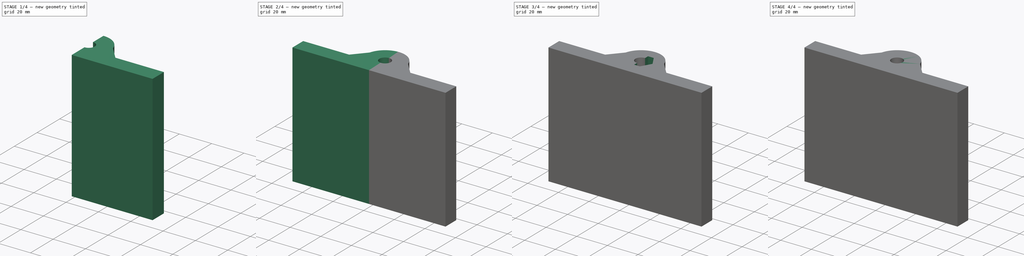
[diagram: build sequence overview — one tinted view per stage of 4, left to right]
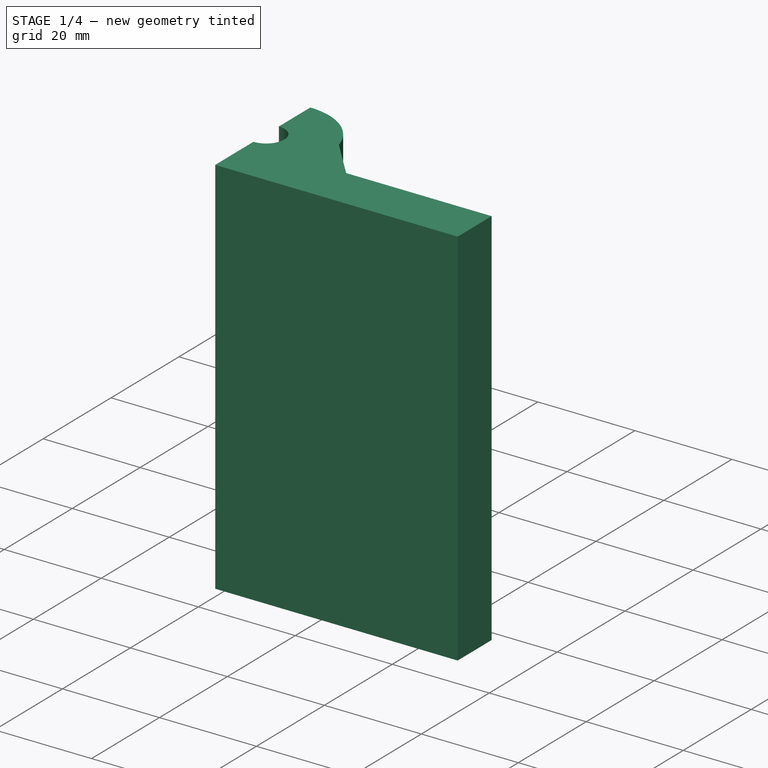
[diagram: stage 1 of 4 — iso view after this stage's code; geometry added in this stage tinted green]
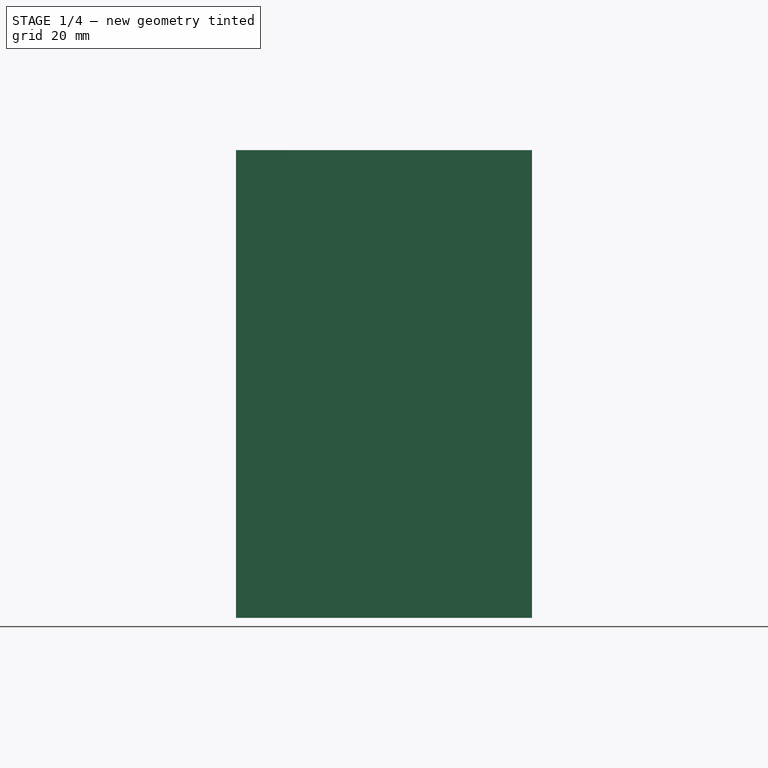
[diagram: stage 1 of 4 — front view after this stage's code; geometry added in this stage tinted green]
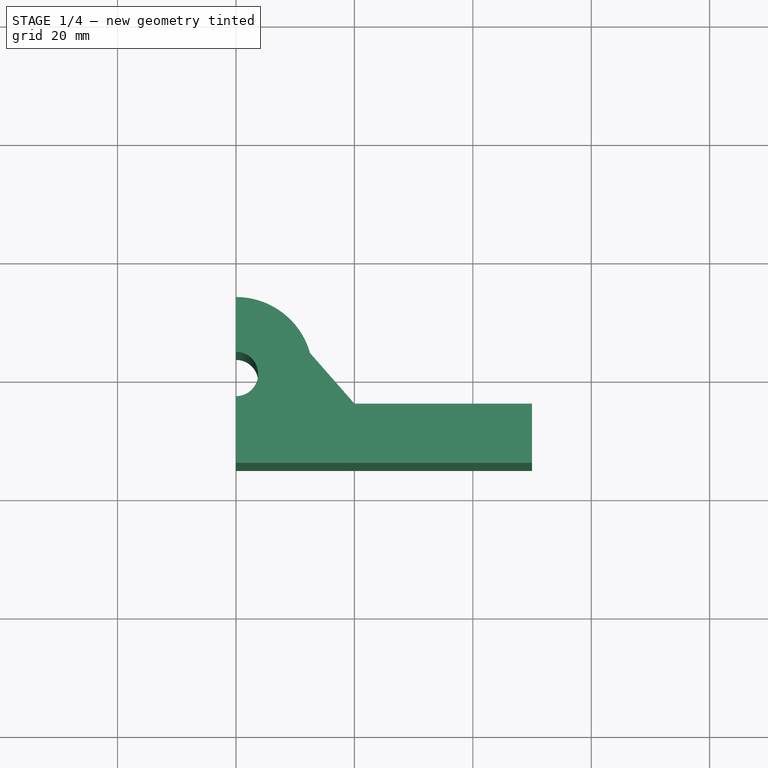
[diagram: stage 1 of 4 — top view after this stage's code; geometry added in this stage tinted green]
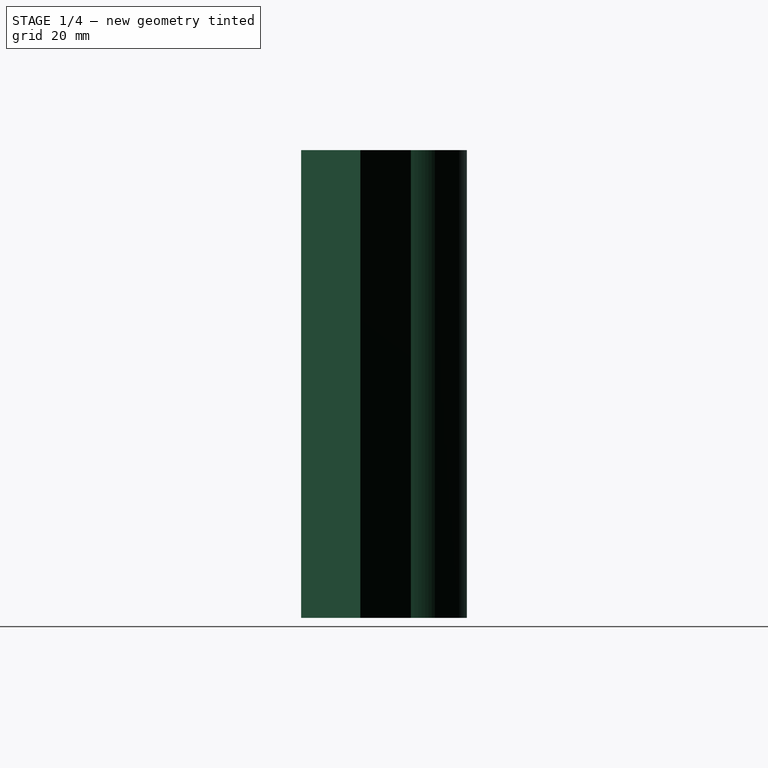
[diagram: stage 1 of 4 — right view after this stage's code; geometry added in this stage tinted green]
FCSTD DOCUMENT  (FreeCAD 0.19R24291 (Git))
Label: Zrcadlovka_1
License: All rights reserved
LicenseURL: http://en.wikipedia.org/wiki/All_rights_reserved
objects: Sketcher::SketchObject×4, Part::Mirroring×4, App::Part×2, Part::Extrusion×2, Part::MultiFuse×2, PartDesign::Pocket×2, PartDesign::ShapeBinder×1, PartDesign::Body×1, PartDesign::FeatureBase×1
note: 19 computed .brp shape members not serialized (recipe doc carries the construction recipe); baked Part::Feature solids carry a one-line shape summary decoded from their .brp

FEATURE [PartDesign::ShapeBinder] CopyFusion
  TraceSupport = false
FEATURE [PartDesign::Body] Body  label="Pulka"
  Group = -> [CopyFusion]
  Origin = -> Origin001
FEATURE [Sketcher::SketchObject] Sketch004  label="Zakladni_tvar001"
  FullyConstrained = true
  MapMode = 5
  Support = -> [XY_Plane005]
  sketch-geometry (9):
    g0: Circle CenterX=0 CenterY=0 CenterZ=0 NormalX=0 NormalY=0 NormalZ=1 AngleXU=0 Radius=3.75
    g1: LineSegment StartX=-50 StartY=-15.0095 StartZ=0 EndX=0 EndY=-15.0095 EndZ=0
    g2: LineSegment StartX=-50 StartY=-5.00947 StartZ=0 EndX=-50 EndY=-15.0095 EndZ=0
    g3: LineSegment StartX=-12.51 StartY=3.53552 StartZ=0 EndX=-20 EndY=-5.00553 EndZ=0
    g4: LineSegment StartX=-20 StartY=-5.00553 StartZ=0 EndX=-50 EndY=-5.00947 EndZ=0
    g5: ArcOfCircle CenterX=0 CenterY=0 CenterZ=0 NormalX=0 NormalY=0 NormalZ=1 AngleXU=0 Radius=13 StartAngle=1.5708 EndAngle=2.86616
    g6: ArcOfCircle CenterX=0 CenterY=0 CenterZ=0 NormalX=0 NormalY=0 NormalZ=1 AngleXU=0 Radius=3.75 StartAngle=1.5708 EndAngle=4.71239
    g7: LineSegment StartX=8e-16 StartY=13 StartZ=0 EndX=8e-16 EndY=3.75 EndZ=0
    g8: LineSegment StartX=0 StartY=-3.75 StartZ=0 EndX=0 EndY=-15.0095 EndZ=0
  constraints (26):
    c: Coincident(g0,g-1)
    c: Radius(g0) = 3.75
    c: Coincident(g4,g2)
    c: Coincident(g2,g1)
    c: Horizontal(g1)
    c: Vertical(g2)
    c: Distance(g1) = 50
    c: Distance(g2) = 10
    c: Coincident(g4,g3)
    c: Coincident(g5,g0)
    c: Coincident(g5,g3)
    c: Coincident(g6,g5)
    c: PointOnObject(g6,g0)
    c: Angle(g6) = 3.14159
    c: PointOnObject(g6,g-2)
    c: Coincident(g7,g5)
    c: Coincident(g7,g6)
    c: Vertical(g7)
    c: Coincident(g8,g1)
    c: Vertical(g8)
    c: Coincident(g8,g6)
    c: Distance(g3,g3) = 11.36
    c: Distance(g1,g3) = 22.37
    c: DistanceX(g2,g3) = 30
    c: Radius(g5) = 13
    c: DistanceX(g3) = -12.51
FEATURE [Sketcher::SketchObject] Sketch005  label="DiraMatice001"
  FullyConstrained = true
  MapMode = 5
  Support = -> [XY_Plane006]
  sketch-geometry (7):
    g0: LineSegment StartX=0 StartY=-7.5 StartZ=0 EndX=6.49519 EndY=-3.75 EndZ=0
    g1: LineSegment StartX=6.49519 StartY=-3.75 StartZ=0 EndX=6.49519 EndY=3.75 EndZ=0
    g2: LineSegment StartX=6.49519 StartY=3.75 StartZ=0 EndX=-2.11111e-11 EndY=7.5 EndZ=0
    g3: LineSegment StartX=-2.11112e-11 StartY=7.5 StartZ=0 EndX=-6.49519 EndY=3.75 EndZ=0
    g4: LineSegment StartX=-6.49519 StartY=3.75 StartZ=0 EndX=-6.49519 EndY=-3.75 EndZ=0
    g5: LineSegment StartX=-6.49519 StartY=-3.75 StartZ=0 EndX=0 EndY=-7.5 EndZ=0
    g6: Circle CenterX=0 CenterY=0 CenterZ=0 NormalX=0 NormalY=0 NormalZ=1 AngleXU=0 Radius=7.5
  constraints (16):
    c: Coincident(g0,g1)
    c: Coincident(g1,g2)
    c: Coincident(g2,g3)
    c: Coincident(g3,g4)
    c: Coincident(g4,g5)
    c: Coincident(g5,g0)
    c: Equal(g0, g1-g5) x5
    c: PointOnObject(g0,g6)
    c: PointOnObject(g1,g6)
    c: PointOnObject(g2,g6)
    c: PointOnObject(g3,g6)
    c: PointOnObject(g4,g6)
    c: PointOnObject(g5,g6)
    c: Coincident(g6,g-1)
    c: PointOnObject(g5,g-2)
    c: Radius(g6) = 7.5
FEATURE [Part::Mirroring] Part__Mirroring002  label="Zakladni_tvar (Mirror #1)001"
  Base = (-25,-1.00474,0)
  Normal = (0,0,1)
  Source = -> Sketch004
FEATURE [Part::Extrusion] Extrude001  label="Extrude_pulky001"
  Base = -> Part__Mirroring002
  Dir = (0,0,1)
  DirMode = 2
  FaceMakerClass = Part::FaceMakerBullseye
  LengthFwd = 79
  LengthRev = 0
  Solid = true
  Symmetric = false
FEATURE [Part::Mirroring] Part__Mirroring003  label="Extrude (Mirror #2)001"
  Base = (0,0,0)
  Normal = (1,0,0)
  Source = -> Extrude001
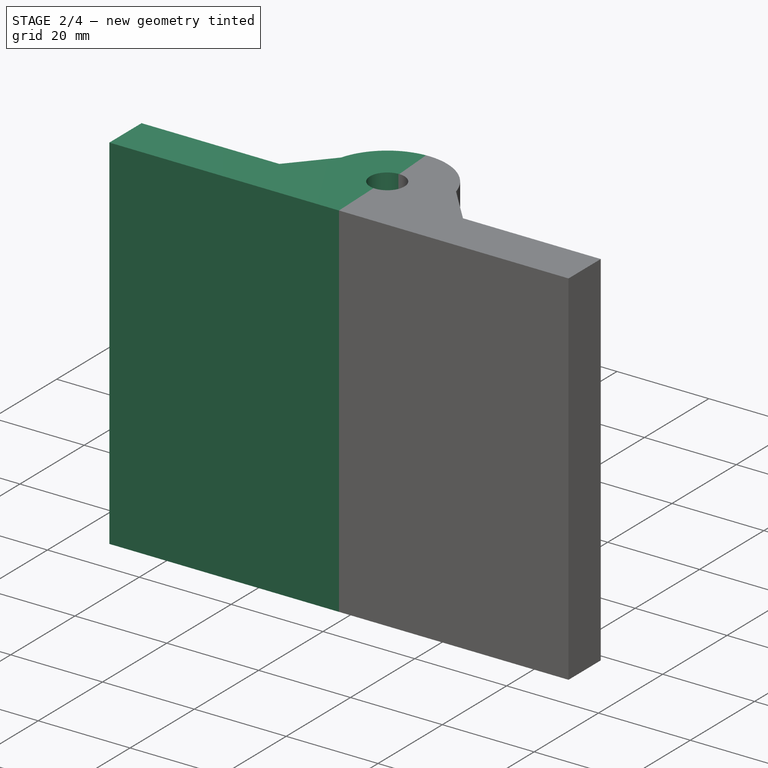
[diagram: stage 2 of 4 — iso view after this stage's code; geometry added in this stage tinted green]
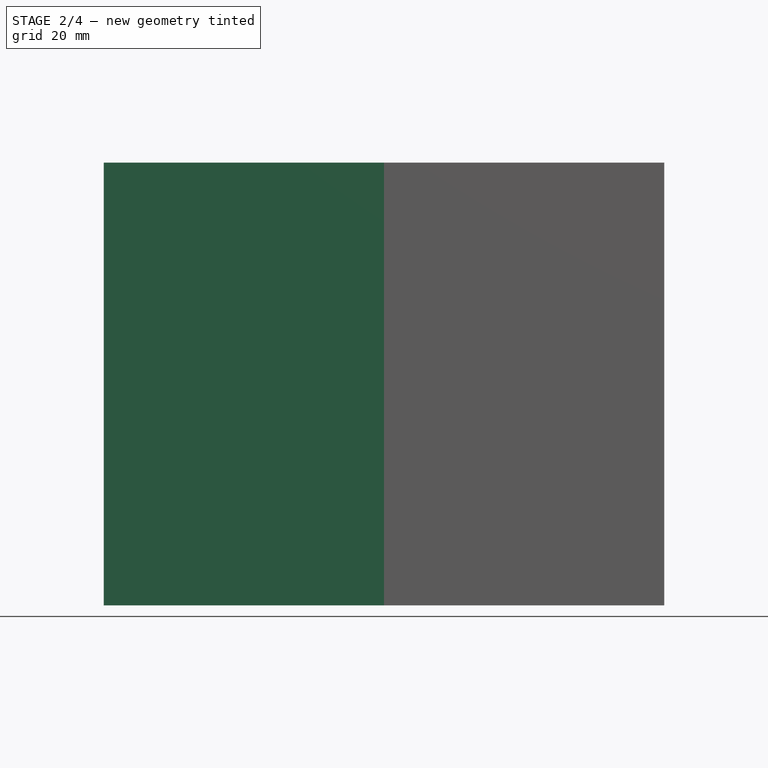
[diagram: stage 2 of 4 — front view after this stage's code; geometry added in this stage tinted green]
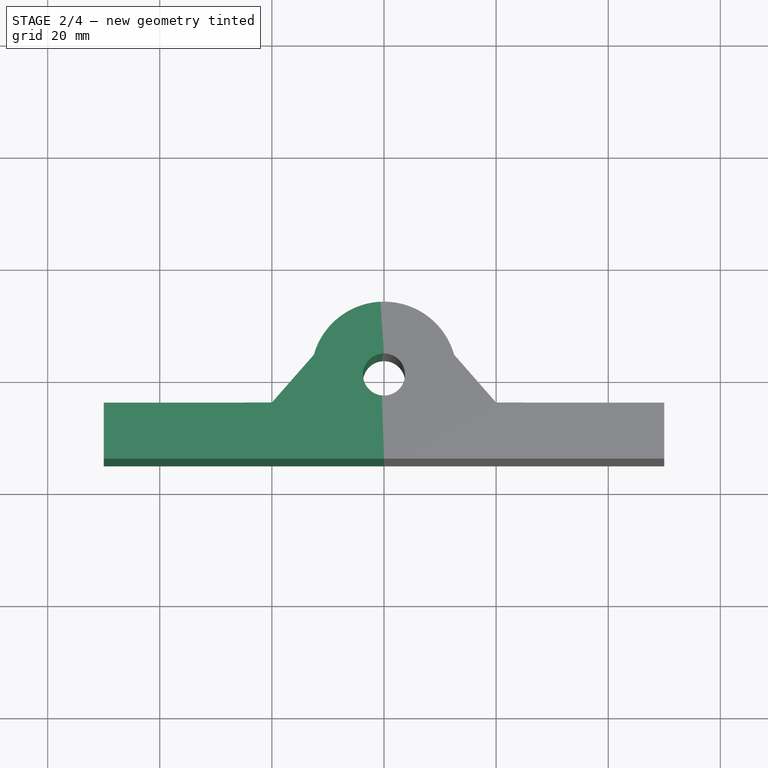
[diagram: stage 2 of 4 — top view after this stage's code; geometry added in this stage tinted green]
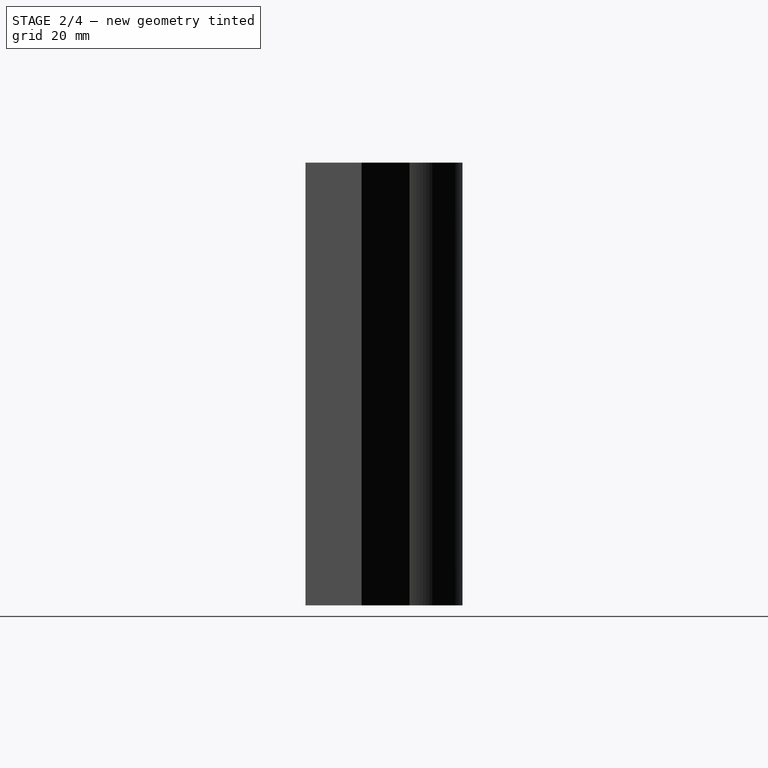
[diagram: stage 2 of 4 — right view after this stage's code; geometry added in this stage tinted green]
FEATURE [Part::MultiFuse] Fusion001
  Shapes = -> [Part__Mirroring003,Extrude001]
FEATURE [PartDesign::FeatureBase] BaseFeature001
  BaseFeature = -> Fusion001
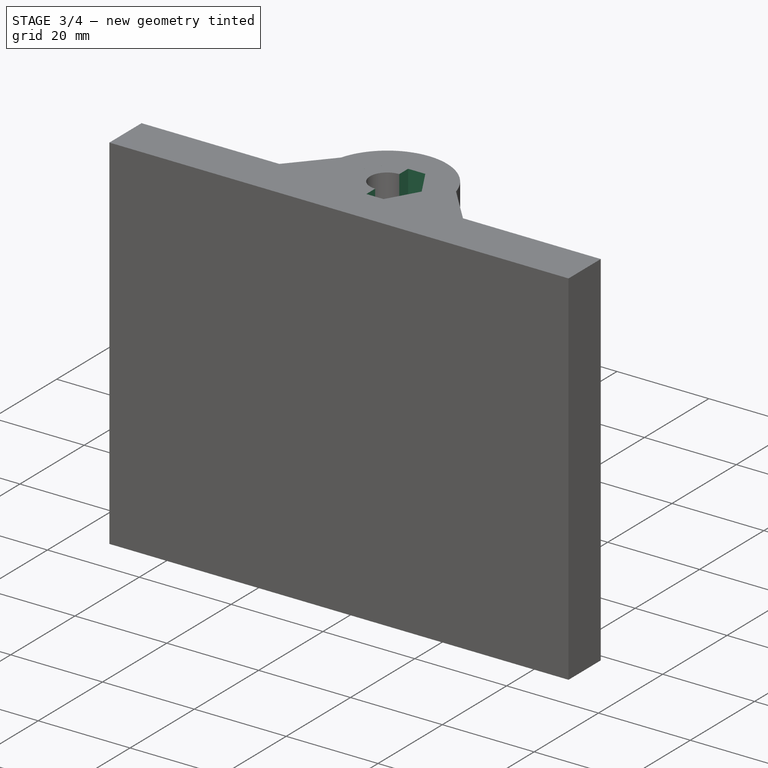
[diagram: stage 3 of 4 — iso view after this stage's code; geometry added in this stage tinted green]
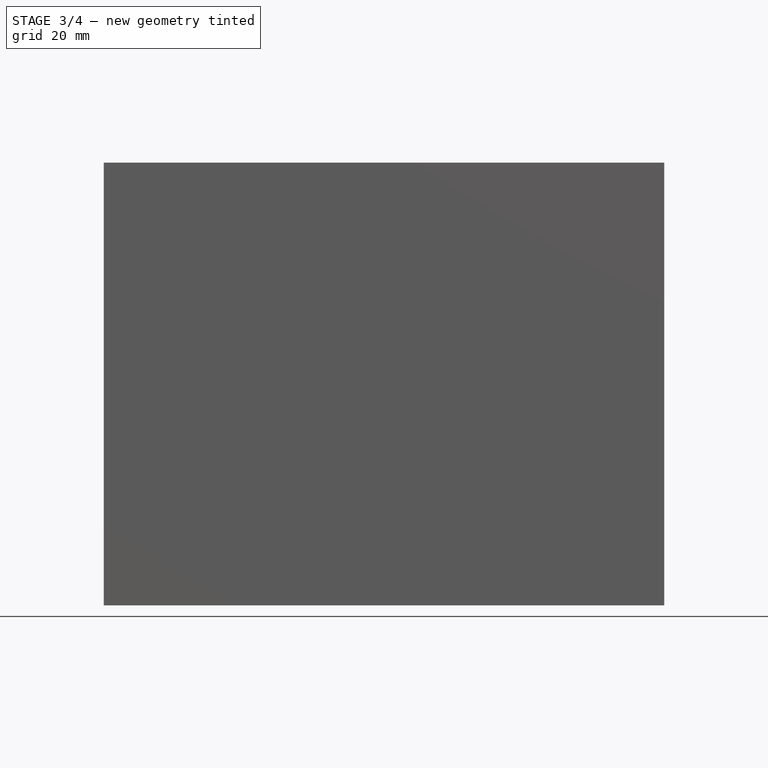
[diagram: stage 3 of 4 — front view after this stage's code; geometry added in this stage tinted green]
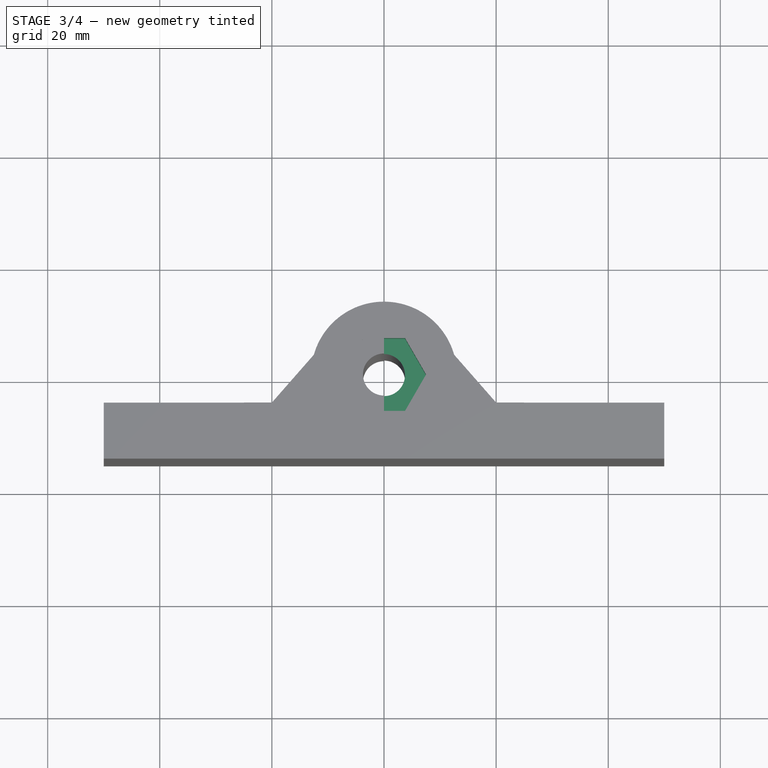
[diagram: stage 3 of 4 — top view after this stage's code; geometry added in this stage tinted green]
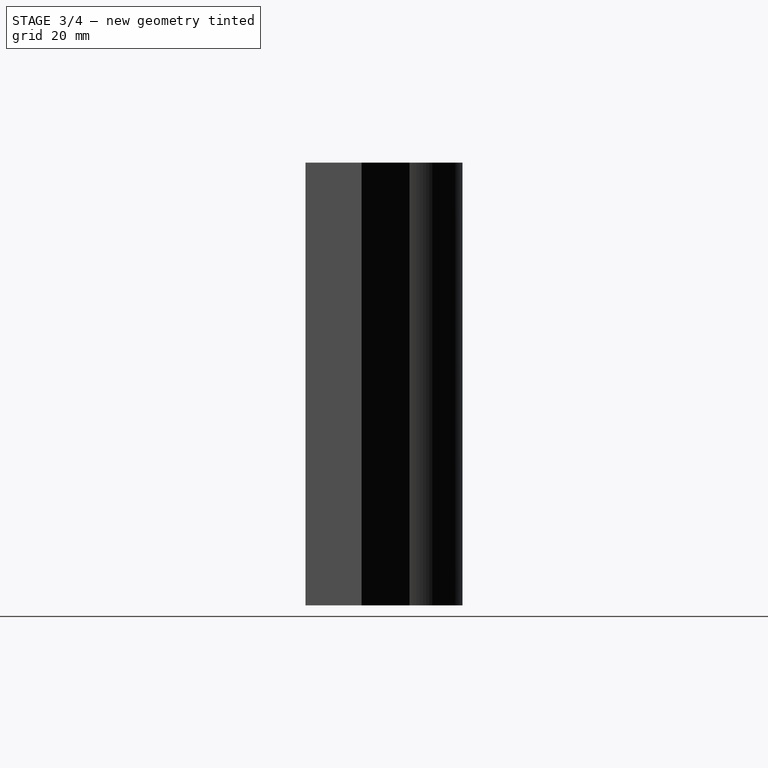
[diagram: stage 3 of 4 — right view after this stage's code; geometry added in this stage tinted green]
FEATURE [App::Part] Part
  Origin = -> Origin
FEATURE [Sketcher::SketchObject] Sketch  label="Zakladni_tvar"
  FullyConstrained = true
  MapMode = 5
  Support = -> [XY_Plane002]
  sketch-geometry (9):
    g0: Circle CenterX=0 CenterY=0 CenterZ=0 NormalX=0 NormalY=0 NormalZ=1 AngleXU=0 Radius=3.75
    g1: LineSegment StartX=-50 StartY=-15.0095 StartZ=0 EndX=0 EndY=-15.0095 EndZ=0
    g2: LineSegment StartX=-50 StartY=-5.00947 StartZ=0 EndX=-50 EndY=-15.0095 EndZ=0
    g3: LineSegment StartX=-12.51 StartY=3.53552 StartZ=0 EndX=-20 EndY=-5.00553 EndZ=0
    g4: LineSegment StartX=-20 StartY=-5.00553 StartZ=0 EndX=-50 EndY=-5.00947 EndZ=0
    g5: ArcOfCircle CenterX=0 CenterY=0 CenterZ=0 NormalX=0 NormalY=0 NormalZ=1 AngleXU=0 Radius=13 StartAngle=1.5708 EndAngle=2.86616
    g6: ArcOfCircle CenterX=0 CenterY=0 CenterZ=0 NormalX=0 NormalY=0 NormalZ=1 AngleXU=0 Radius=3.75 StartAngle=1.5708 EndAngle=4.71239
    g7: LineSegment StartX=2e-16 StartY=13 StartZ=0 EndX=2e-16 EndY=3.75 EndZ=0
    g8: LineSegment StartX=0 StartY=-3.75 StartZ=0 EndX=0 EndY=-15.0095 EndZ=0
  constraints (26):
    c: Coincident(g0,g-1)
    c: Radius(g0) = 3.75
    c: Coincident(g4,g2)
    c: Coincident(g2,g1)
    c: Horizontal(g1)
    c: Vertical(g2)
    c: Distance(g1) = 50
    c: Distance(g2) = 10
    c: Coincident(g4,g3)
    c: Coincident(g5,g0)
    c: Coincident(g5,g3)
    c: Coincident(g6,g5)
    c: PointOnObject(g6,g0)
    c: Angle(g6) = 3.14159
    c: PointOnObject(g6,g-2)
    c: Coincident(g7,g5)
    c: Coincident(g7,g6)
    c: Vertical(g7)
    c: Coincident(g8,g1)
    c: Vertical(g8)
    c: Coincident(g8,g6)
    c: Distance(g3,g3) = 11.36
    c: Distance(g1,g3) = 22.37
    c: DistanceX(g2,g3) = 30
    c: Radius(g5) = 13
    c: DistanceX(g3) = -12.51
FEATURE [App::Part] Part001  label="Pokracovani_pulky"
  Group = -> [Sketch]
  Origin = -> Origin002
FEATURE [Part::Mirroring] Part__Mirroring  label="Zakladni_tvar (Mirror #1)"
  Base = (-25,-1.00474,0)
  Normal = (0,0,1)
  Source = -> Sketch
FEATURE [Part::Extrusion] Extrude  label="Extrude_pulky"
  Base = -> Part__Mirroring
  Dir = (0,0,1)
  DirMode = 2
  FaceMakerClass = Part::FaceMakerBullseye
  LengthFwd = 79
  LengthRev = 0
  Solid = true
  Symmetric = false
FEATURE [PartDesign::Pocket] Pocket003
  BaseFeature = -> BaseFeature001
  Length = 6
  Length2 = 100
  Profile = -> Sketch005
  Reversed = true
  Type = 0
FEATURE [Sketcher::SketchObject] Sketch003
  FullyConstrained = true
  MapMode = 5
  Placement = pos=(0,0,79) rot=(0,0,1;0rad)
  Support = -> [Pocket003]
  sketch-geometry (7):
    g0: LineSegment StartX=-3.75 StartY=-6.49519 StartZ=0 EndX=3.75 EndY=-6.49519 EndZ=0
    g1: LineSegment StartX=3.75 StartY=-6.49519 StartZ=0 EndX=7.5 EndY=-2.7098e-12 EndZ=0
    g2: LineSegment StartX=7.5 StartY=-2.7098e-12 StartZ=0 EndX=3.75 EndY=6.49519 EndZ=0
    g3: LineSegment StartX=3.75 StartY=6.49519 StartZ=0 EndX=-3.75 EndY=6.49519 EndZ=0
    g4: LineSegment StartX=-3.75 StartY=6.49519 StartZ=0 EndX=-7.5 EndY=0 EndZ=0
    g5: LineSegment StartX=-7.5 StartY=0 StartZ=0 EndX=-3.75 EndY=-6.49519 EndZ=0
    g6: Circle CenterX=0 CenterY=0 CenterZ=0 NormalX=0 NormalY=0 NormalZ=1 AngleXU=0 Radius=7.5
  constraints (16):
    c: Coincident(g0,g1)
    c: Coincident(g1,g2)
    c: Coincident(g2,g3)
    c: Coincident(g3,g4)
    c: Coincident(g4,g5)
    c: Coincident(g5,g0)
    c: Equal(g0, g1-g5) x5
    c: PointOnObject(g0,g6)
    c: PointOnObject(g1,g6)
    c: PointOnObject(g2,g6)
    c: PointOnObject(g3,g6)
    c: PointOnObject(g4,g6)
    c: PointOnObject(g5,g6)
    c: Radius(g6) = 7.5
    c: Coincident(g6,g-1)
    c: PointOnObject(g4,g-1)
FEATURE [PartDesign::Pocket] Pocket002  label="refer_vzpera"
  BaseFeature = -> Pocket003
  Length = 6
  Length2 = 100
  Profile = -> Sketch003
  Type = 0
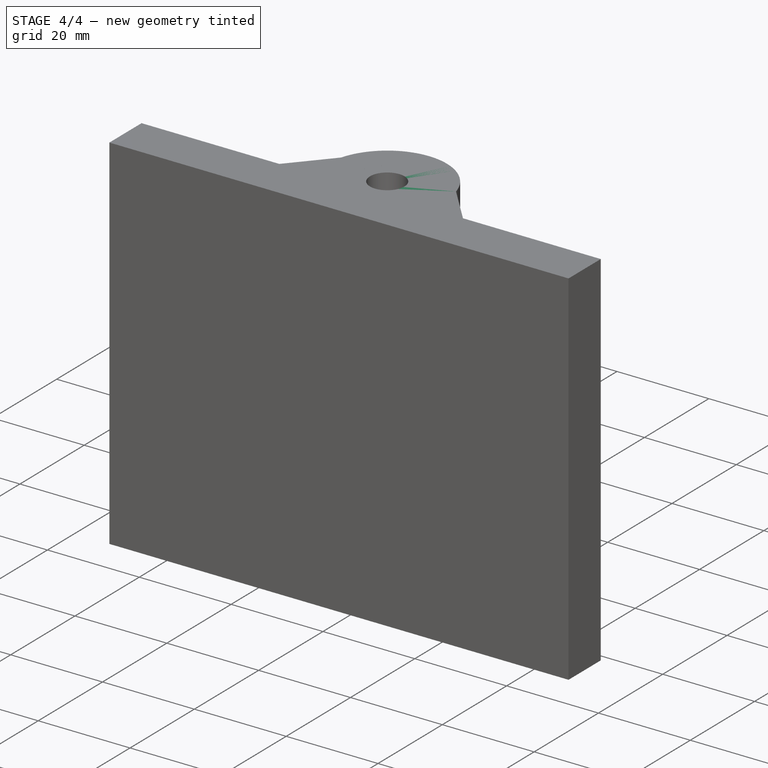
[diagram: stage 4 of 4 — iso view after this stage's code; geometry added in this stage tinted green]
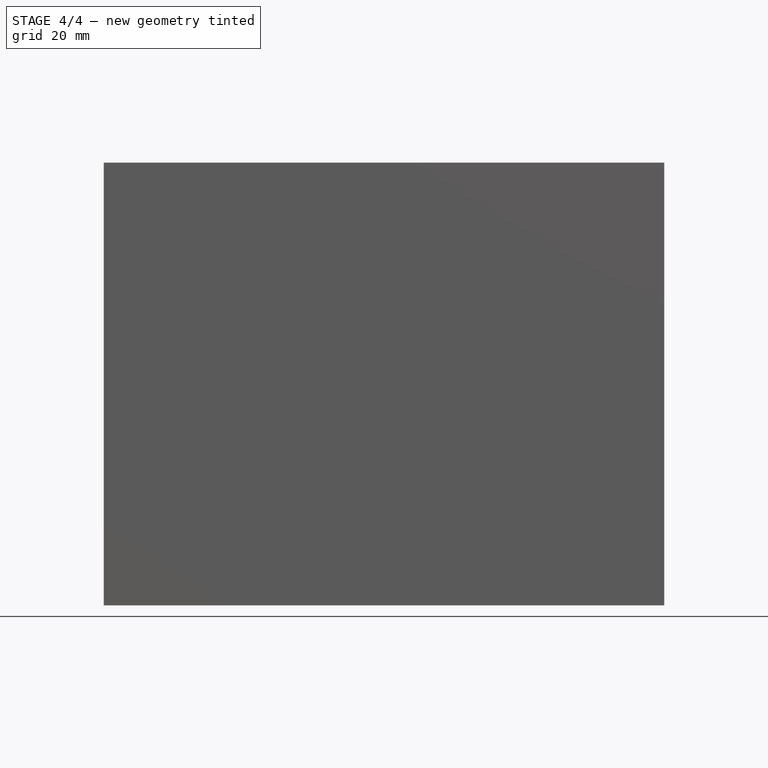
[diagram: stage 4 of 4 — front view after this stage's code; geometry added in this stage tinted green]
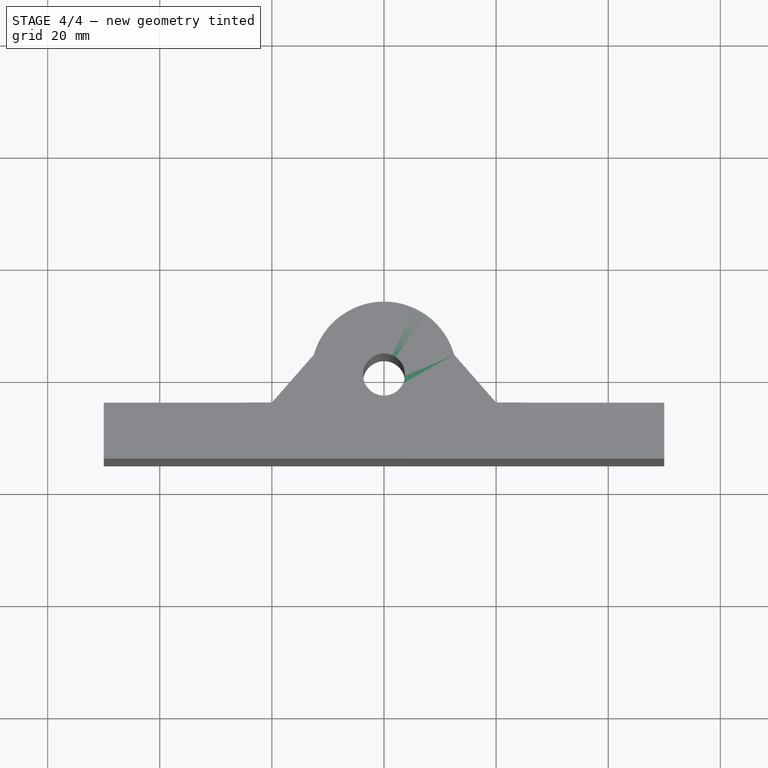
[diagram: stage 4 of 4 — top view after this stage's code; geometry added in this stage tinted green]
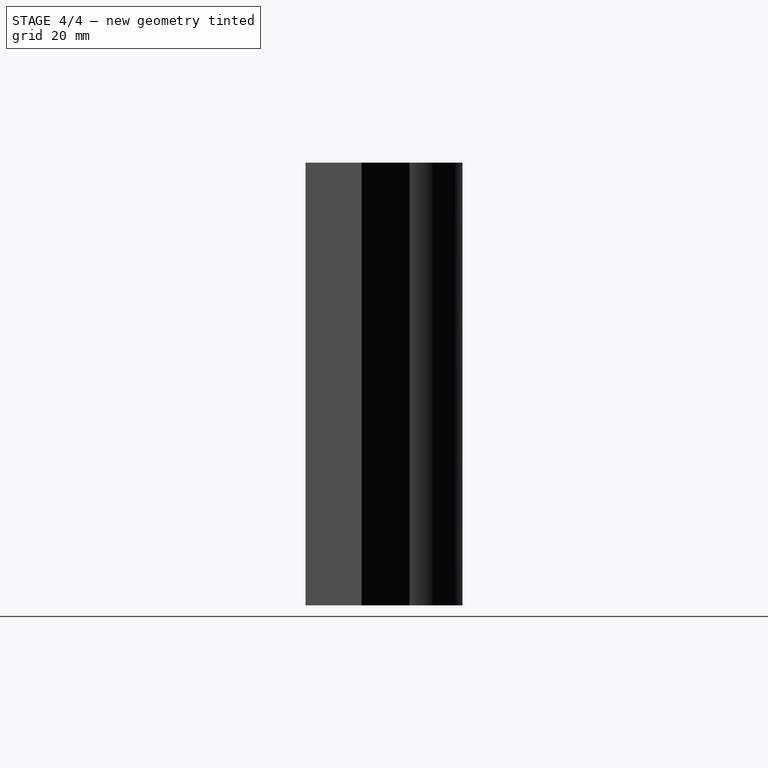
[diagram: stage 4 of 4 — right view after this stage's code; geometry added in this stage tinted green]
FEATURE [Part::Mirroring] Part__Mirroring001  label="Extrude (Mirror #2)"
  Base = (0,0,0)
  Normal = (1,0,0)
  Source = -> Extrude
FEATURE [Part::MultiFuse] Fusion
  Shapes = -> [Part__Mirroring001,Extrude]
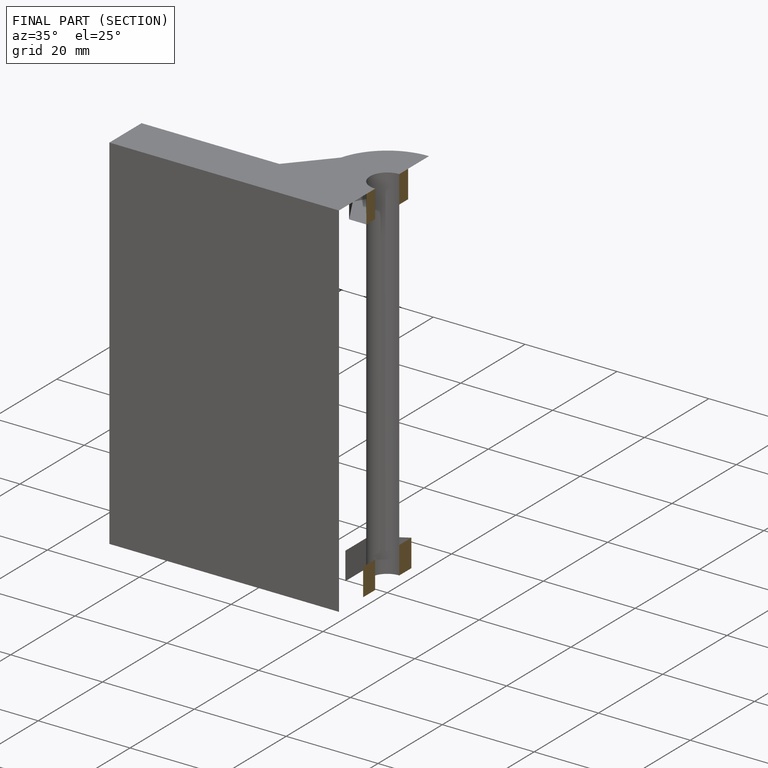
[diagram: finished part — half-section view (interior)]
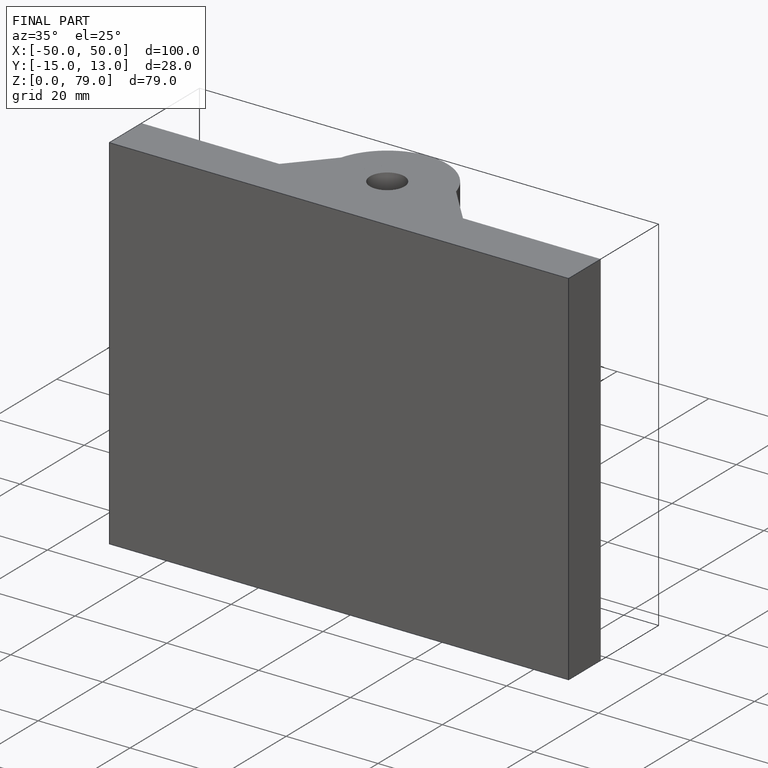
[diagram: finished part — iso view with bounding-box wireframe]
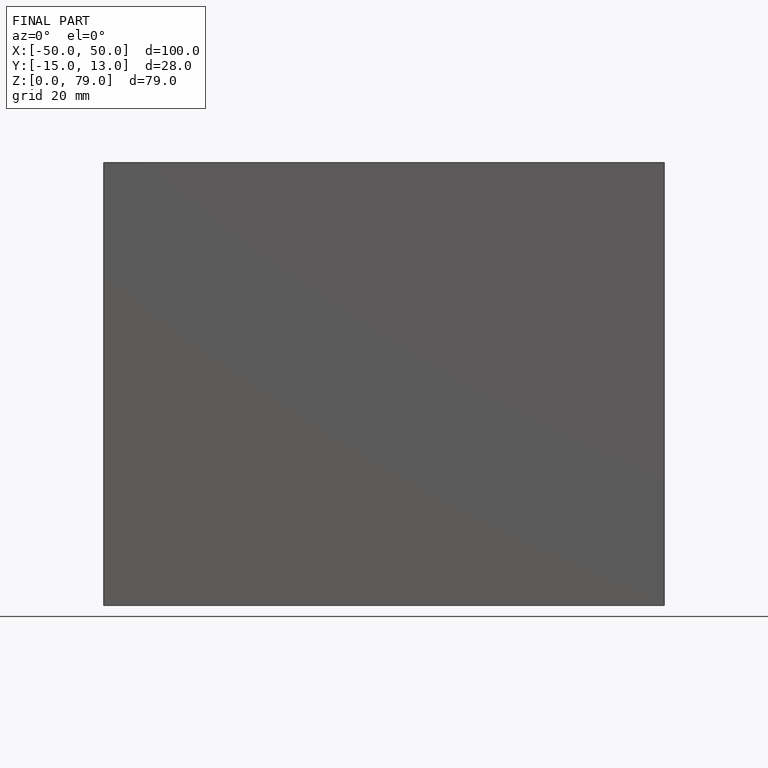
[diagram: finished part — front view with bounding-box wireframe]
